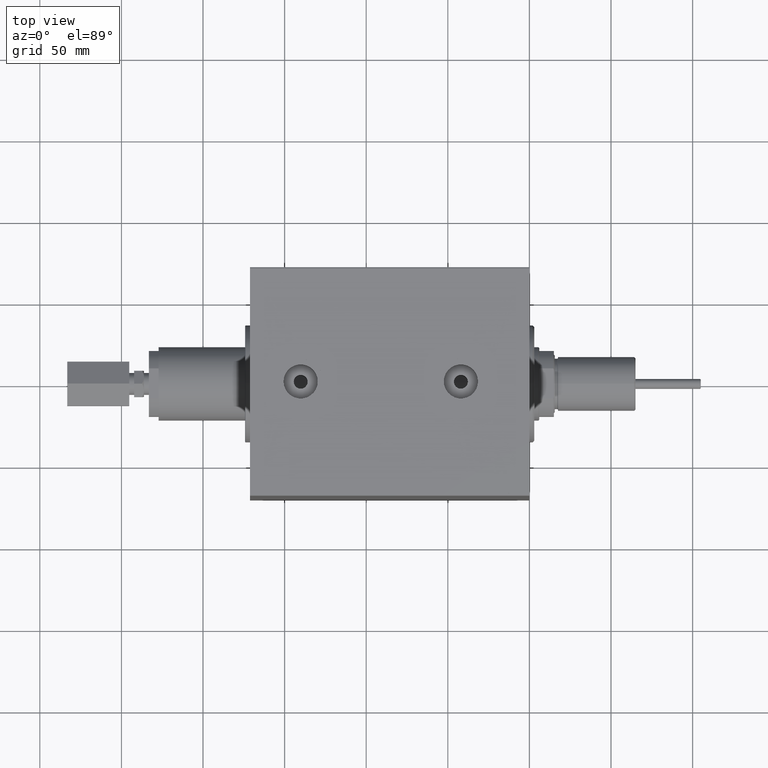
[diagram: clean part render]
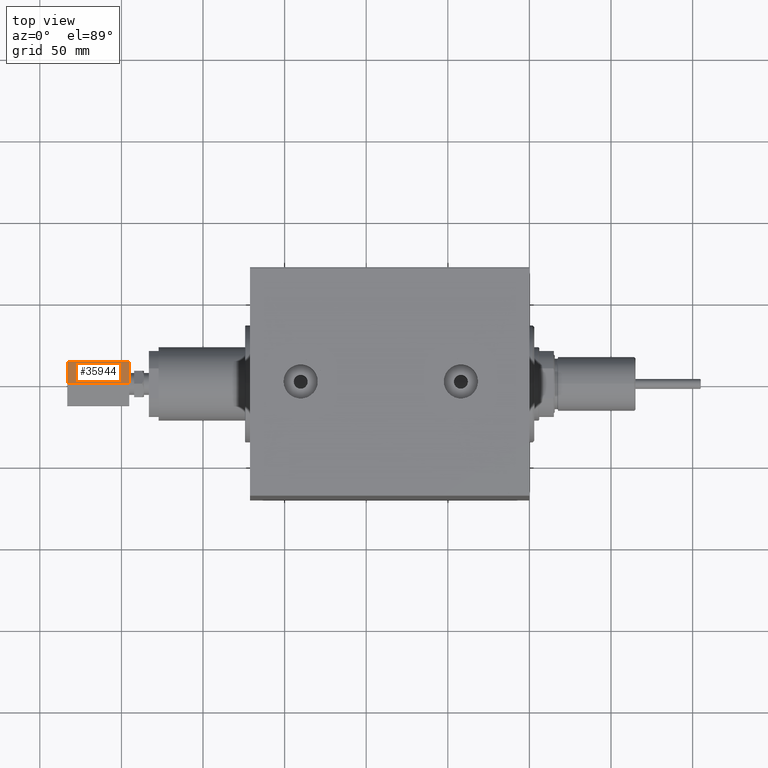
[diagram: same view with one face highlighted and labeled with its STEP entity id]
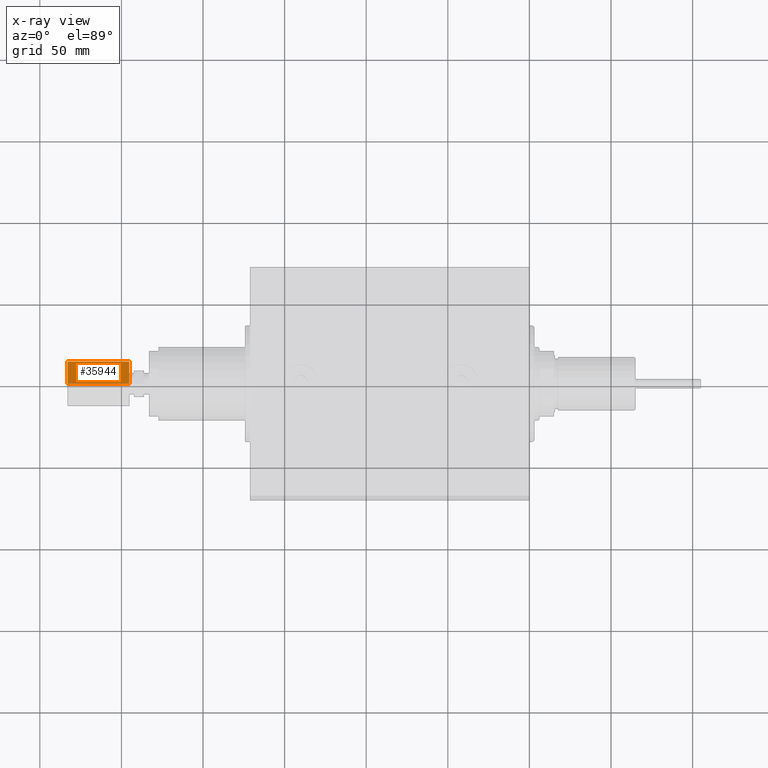
[diagram: x-ray of the same camera — body ghosted, the highlighted face saturated]
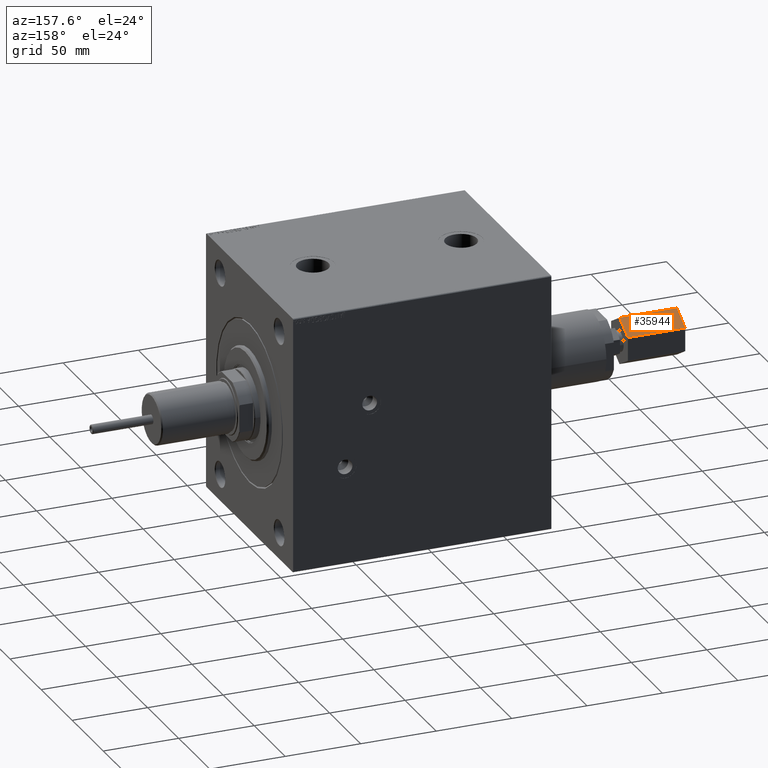
[diagram: same view with one face highlighted and labeled with its STEP entity id]
A machine part, top view. The second image highlights one B-rep face of the part: STEP entity #35944.
The next image is the same camera in x-ray: the body ghosted, the highlighted face saturated — about 0% of this face is hidden behind the body in this view.
A second angle (auxiliary view) of the same face is appended — the face is thin or edge-on in the first view.
In plain terms, the highlighted planar face has unit normal (0, -0.5, -0.866).
Its self-contained STEP definition (entity closure, byte-faithful):
#2533 = ORIENTED_EDGE ( 'NONE', *, *, #34482, .F. ) ;
#4212 = LINE ( 'NONE', #48365, #34737 ) ;
#4317 = VECTOR ( 'NONE', #39470, 1000.000000000000114 ) ;
#4338 = VERTEX_POINT ( 'NONE', #20527 ) ;
#5485 = VECTOR ( 'NONE', #22549, 1000.000000000000114 ) ;
#6403 = CARTESIAN_POINT ( 'NONE',  ( 74.00000000000001421, -15.58845726811989607, -5.983477626642369342E-15 ) ) ;
#7515 = CARTESIAN_POINT ( 'NONE',  ( 112.0000000000000142, -15.58845726811989607, -5.983477626642369342E-15 ) ) ;
#9454 = AXIS2_PLACEMENT_3D ( 'NONE', #42974, #47385, #39978 ) ;
#9954 = VECTOR ( 'NONE', #44150, 1000.000000000000000 ) ;
#14581 = DIRECTION ( 'NONE',  ( -1.000000000000000000, -0.000000000000000000, -0.000000000000000000 ) ) ;
#15904 = EDGE_CURVE ( 'NONE', #41519, #47485, #47828, .T. ) ;
#18164 = EDGE_CURVE ( 'NONE', #4338, #41519, #22181, .T. ) ;
#20527 = CARTESIAN_POINT ( 'NONE',  ( 112.0000000000000142, -15.58845726811989607, -5.983477626642369342E-15 ) ) ;
#22181 = LINE ( 'NONE', #28869, #9954 ) ;
#22549 = DIRECTION ( 'NONE',  ( 0.000000000000000000, 0.4999999999999998335, -0.8660254037844387076 ) ) ;
#26252 = LINE ( 'NONE', #7515, #5485 ) ;
#28869 = CARTESIAN_POINT ( 'NONE',  ( 112.0000000000000142, -15.58845726811989607, -5.983477626642369342E-15 ) ) ;
#28990 = ORIENTED_EDGE ( 'NONE', *, *, #15904, .T. ) ;
#30871 = ORIENTED_EDGE ( 'NONE', *, *, #38547, .F. ) ;
#34102 = FACE_OUTER_BOUND ( 'NONE', #48095, .T. ) ;
#34482 = EDGE_CURVE ( 'NONE', #4338, #35803, #26252, .T. ) ;
#34737 = VECTOR ( 'NONE', #14581, 1000.000000000000000 ) ;
#35803 = VERTEX_POINT ( 'NONE', #40758 ) ;
#35944 = ADVANCED_FACE ( 'NONE', ( #34102 ), #43209, .F. ) ;
#38547 = EDGE_CURVE ( 'NONE', #35803, #47485, #4212, .T. ) ;
#39470 = DIRECTION ( 'NONE',  ( 0.000000000000000000, 0.4999999999999998335, -0.8660254037844387076 ) ) ;
#39978 = DIRECTION ( 'NONE',  ( 0.000000000000000000, -0.4999999999999998335, 0.8660254037844387076 ) ) ;
#40175 = CARTESIAN_POINT ( 'NONE',  ( 74.00000000000001421, -7.794228634059953364, -13.50000000000000178 ) ) ;
#40758 = CARTESIAN_POINT ( 'NONE',  ( 112.0000000000000142, -7.794228634059953364, -13.50000000000000178 ) ) ;
#41519 = VERTEX_POINT ( 'NONE', #44747 ) ;
#42440 = ORIENTED_EDGE ( 'NONE', *, *, #18164, .T. ) ;
#42974 = CARTESIAN_POINT ( 'NONE',  ( 112.0000000000000142, -15.58845726811989607, -5.983477626642369342E-15 ) ) ;
#43209 = PLANE ( 'NONE',  #9454 ) ;
#44150 = DIRECTION ( 'NONE',  ( -1.000000000000000000, -0.000000000000000000, -0.000000000000000000 ) ) ;
#44747 = CARTESIAN_POINT ( 'NONE',  ( 74.00000000000001421, -15.58845726811989607, -5.983477626642369342E-15 ) ) ;
#47385 = DIRECTION ( 'NONE',  ( -0.000000000000000000, 0.8660254037844387076, 0.4999999999999998335 ) ) ;
#47485 = VERTEX_POINT ( 'NONE', #40175 ) ;
#47828 = LINE ( 'NONE', #6403, #4317 ) ;
#48095 = EDGE_LOOP ( 'NONE', ( #28990, #30871, #2533, #42440 ) ) ;
#48365 = CARTESIAN_POINT ( 'NONE',  ( 112.0000000000000142, -7.794228634059953364, -13.50000000000000178 ) ) ;